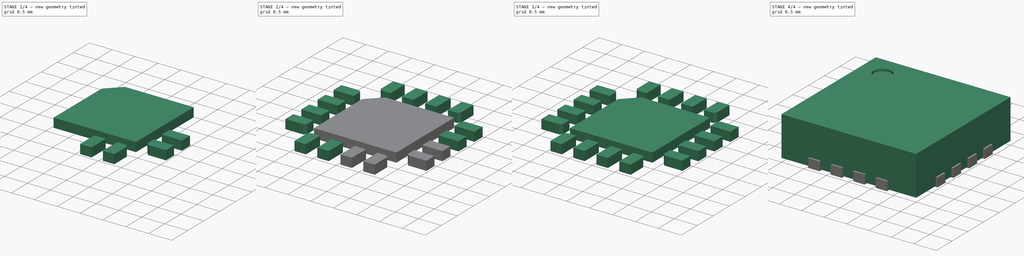
[diagram: build sequence overview — one tinted view per stage of 4, left to right]
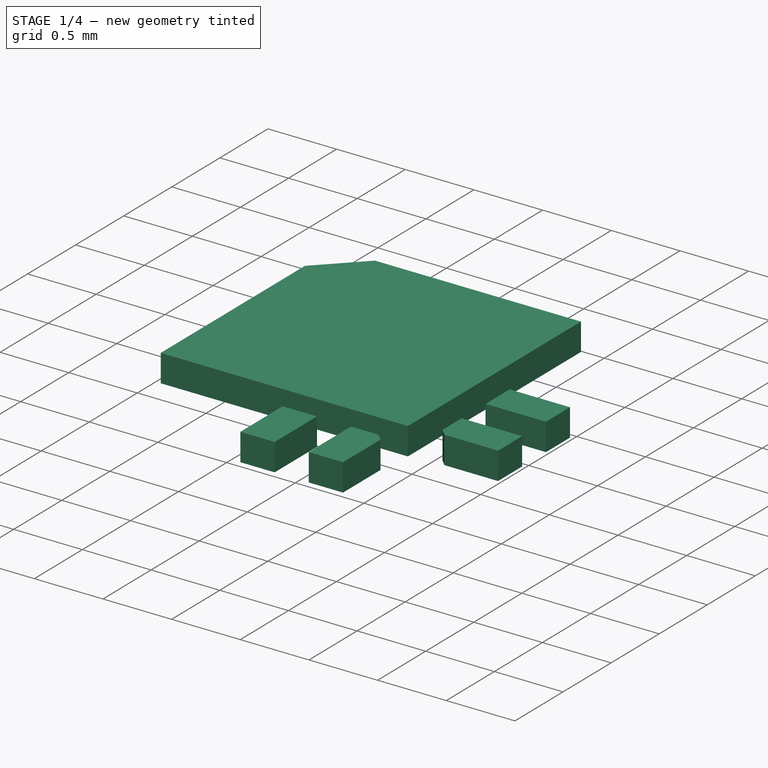
[diagram: stage 1 of 4 — iso view after this stage's code; geometry added in this stage tinted green]
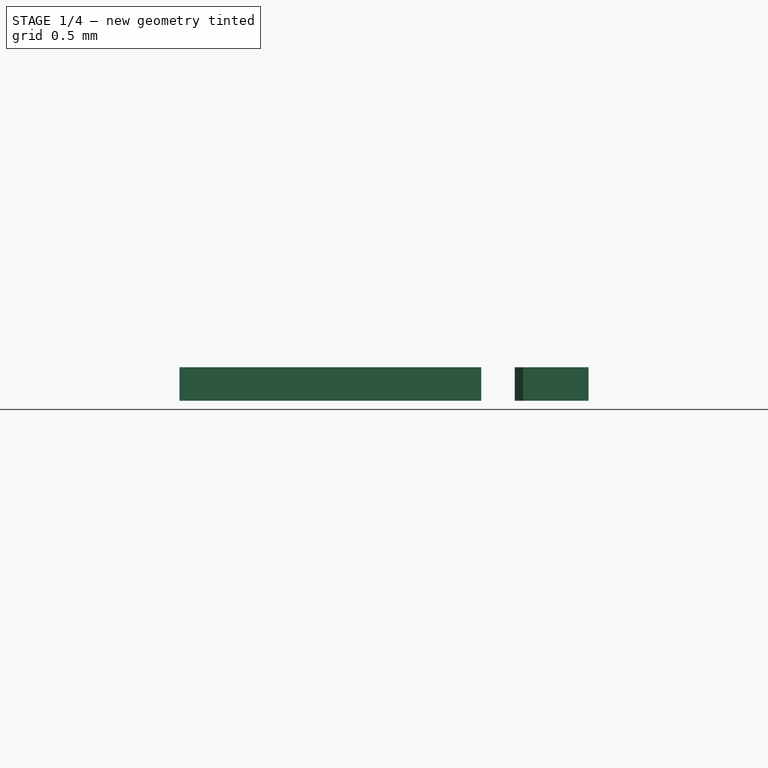
[diagram: stage 1 of 4 — front view after this stage's code; geometry added in this stage tinted green]
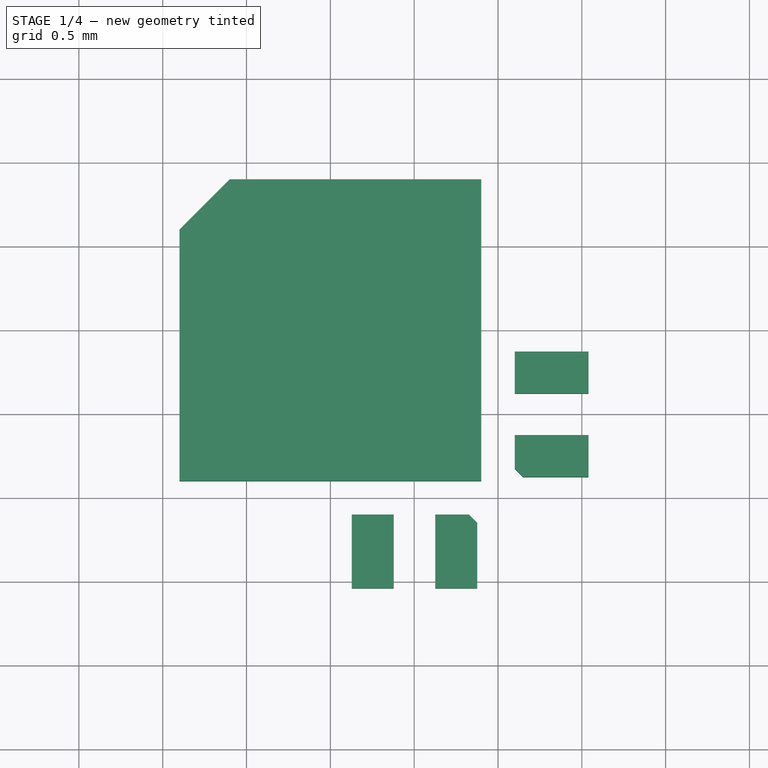
[diagram: stage 1 of 4 — top view after this stage's code; geometry added in this stage tinted green]
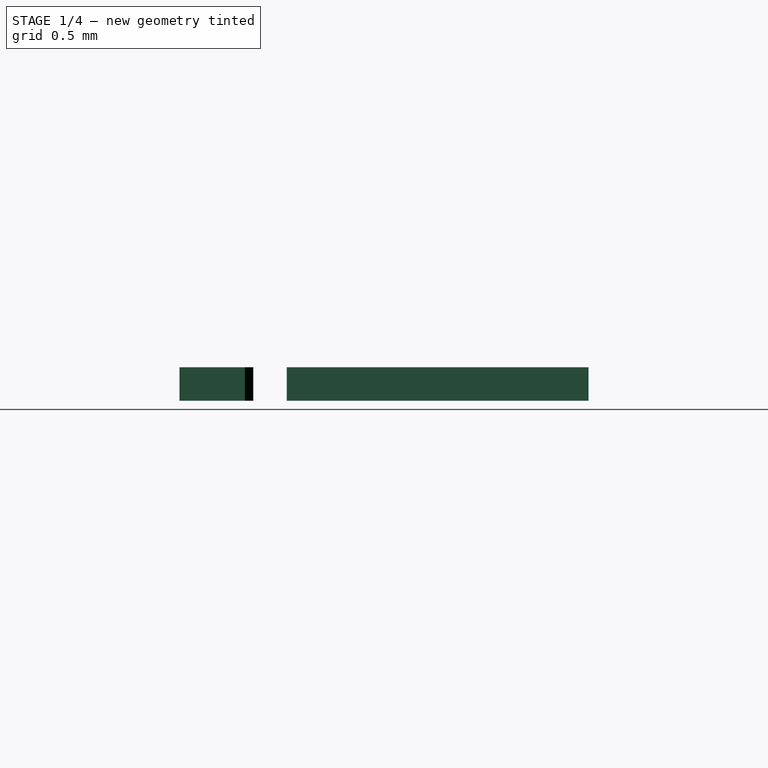
[diagram: stage 1 of 4 — right view after this stage's code; geometry added in this stage tinted green]
FCSTD DOCUMENT  (FreeCAD 0.16R6703 (Git))
Label: QFN16
License: All rights reserved
LicenseURL: http://en.wikipedia.org/wiki/All_rights_reserved
objects: Sketcher::SketchObject×4, PartDesign::Pad×3, Part::MultiFuse×3, Part::FeaturePython×2, Part::Mirroring×2, Part::Feature×1, PartDesign::Pocket×1, App::DocumentObjectGroup×1
note: 20 computed .brp shape members not serialized (recipe doc carries the construction recipe); baked Part::Feature solids carry a one-line shape summary decoded from their .brp

FEATURE [Sketcher::SketchObject] Sketch002
  sketch-geometry (19):
    g0: LineSegment StartX=-0.378 StartY=-1.1 StartZ=0 EndX=-0.128 EndY=-1.1 EndZ=0
    g1: LineSegment StartX=-0.128 StartY=-1.1 StartZ=0 EndX=-0.128 EndY=-1.54 EndZ=0
    g2: LineSegment StartX=-0.128 StartY=-1.54 StartZ=0 EndX=-0.378 EndY=-1.54 EndZ=0
    g3: LineSegment StartX=-0.378 StartY=-1.54 StartZ=0 EndX=-0.378 EndY=-1.1 EndZ=0
    g4: LineSegment StartX=-0.626 StartY=-1.1 StartZ=0 EndX=-0.626 EndY=-1.54 EndZ=0
    g5: LineSegment StartX=-0.626 StartY=-1.54 StartZ=0 EndX=-0.876 EndY=-1.54 EndZ=0
    g6: LineSegment StartX=-0.876 StartY=-1.54 StartZ=0 EndX=-0.876 EndY=-1.15 EndZ=0
    g7: LineSegment StartX=-0.876 StartY=-1.15 StartZ=0 EndX=-0.826 EndY=-1.1 EndZ=0
    g8: LineSegment StartX=-0.826 StartY=-1.1 StartZ=0 EndX=-0.626 EndY=-1.1 EndZ=0
    g9: LineSegment [constr] StartX=0 StartY=0 StartZ=0 EndX=-1.54 EndY=-1.54 EndZ=0
    g10: LineSegment StartX=-1.54 StartY=-0.128 StartZ=0 EndX=-1.1 EndY=-0.128 EndZ=0
    g11: LineSegment StartX=-1.1 StartY=-0.128 StartZ=0 EndX=-1.1 EndY=-0.378 EndZ=0
    g12: LineSegment StartX=-1.1 StartY=-0.378 StartZ=0 EndX=-1.54 EndY=-0.378 EndZ=0
    g13: LineSegment StartX=-1.54 StartY=-0.378 StartZ=0 EndX=-1.54 EndY=-0.128 EndZ=0
    g14: LineSegment StartX=-1.54 StartY=-0.626 StartZ=0 EndX=-1.1 EndY=-0.626 EndZ=0
    g15: LineSegment StartX=-1.15 StartY=-0.876 StartZ=0 EndX=-1.54 EndY=-0.876 EndZ=0
    g16: LineSegment StartX=-1.54 StartY=-0.876 StartZ=0 EndX=-1.54 EndY=-0.626 EndZ=0
    g17: LineSegment StartX=-1.15 StartY=-0.876 StartZ=0 EndX=-1.1 EndY=-0.826 EndZ=0
    g18: LineSegment StartX=-1.1 StartY=-0.826 StartZ=0 EndX=-1.1 EndY=-0.626 EndZ=0
  constraints (53):
    c: Coincident(g0,g1)
    c: Coincident(g1,g2)
    c: Coincident(g2,g3)
    c: Coincident(g3,g0)
    c: Horizontal(g0)
    c: Horizontal(g2)
    c: Vertical(g1)
    c: Vertical(g3)
    c: DistanceY(g1,g-1) = 1.54
    c: DistanceY(g1,g1) = 0.44
    c: DistanceX(g0,g0) = 0.25
    c: DistanceX(g0,g-1) = 0.128
    c: Coincident(g4,g5)
    c: Coincident(g5,g6)
    c: Horizontal(g5)
    c: Vertical(g4)
    c: Vertical(g6)
    c: PointOnObject(g4,g2)
    c: Equal(g4,g3)
    c: Equal(g5,g2)
    c: Coincident(g6,g7)
    c: Coincident(g7,g8)
    c: Coincident(g8,g4)
    c: Horizontal(g8)
    c: Angle(g7,g8) = 2.35619
    c: DistanceX(g8,g8) = 0.2
    c: DistanceX(g4,g2) = 0.248
    c: Coincident(g9,g-1)
    c: PointOnObject(g9,g5)
    c: Angle(g9,g-1) = 2.35619
    c: Coincident(g10,g11)
    c: Coincident(g11,g12)
    c: Coincident(g12,g13)
    c: Coincident(g13,g10)
    c: Horizontal(g10)
    c: Horizontal(g12)
    c: Vertical(g11)
    c: Vertical(g13)
    c: Coincident(g15,g16)
    c: Coincident(g16,g14)
    c: Horizontal(g14)
    c: Horizontal(g15)
    c: Vertical(g16)
    c: Coincident(g15,g17)
    c: Coincident(g17,g18)
    c: Coincident(g18,g14)
    c: Vertical(g18)
    c: Parallel(g17,g9)
    c: Symmetric(g15,g5,g9)
    c: Symmetric(g14,g4,g9)
    c: Symmetric(g10,g1,g9)
    c: Symmetric(g11,g0,g9)
    c: Equal(g17,g7)
FEATURE [PartDesign::Pad] Pad001  label="pads-src-1"
  Length = 0.2
  Length2 = 100
  Sketch = -> Sketch002
  Type = 0
FEATURE [Part::Mirroring] Part__Mirroring  label="pads-src-1 (Mirror #1)"
  Base = (0,0,0)
  Normal = (1,0,0)
  Source = -> Pad001
FEATURE [Sketcher::SketchObject] Sketch003
  sketch-geometry (6):
    g0: LineSegment StartX=-0.6 StartY=0.9 StartZ=0 EndX=0.9 EndY=0.9 EndZ=0
    g1: LineSegment StartX=0.9 StartY=0.9 StartZ=0 EndX=0.9 EndY=-0.9 EndZ=0
    g2: LineSegment StartX=0.9 StartY=-0.9 StartZ=0 EndX=-0.9 EndY=-0.9 EndZ=0
    g3: LineSegment StartX=-0.9 StartY=-0.9 StartZ=0 EndX=-0.9 EndY=0.6 EndZ=0
    g4: LineSegment StartX=-0.9 StartY=0.6 StartZ=0 EndX=-0.6 EndY=0.9 EndZ=0
    g5: LineSegment [constr] StartX=0.9 StartY=-0.9 StartZ=0 EndX=0 EndY=0 EndZ=0
  constraints (17):
    c: Horizontal(g0)
    c: Coincident(g0,g1)
    c: Vertical(g1)
    c: Coincident(g1,g2)
    c: Horizontal(g2)
    c: Coincident(g2,g3)
    c: Vertical(g3)
    c: Coincident(g3,g4)
    c: Coincident(g4,g0)
    c: Coincident(g5,g1)
    c: Coincident(g5,g-1)
    c: Angle(g5,g-1) = 0.785398
    c: Symmetric(g2,g0,g5)
    c: DistanceX(g2,g2) = 1.8
    c: Perpendicular(g5,g4)
    c: Symmetric(g0,g1,g-1)
    c: DistanceX(g0,g-1) = 0.6
FEATURE [PartDesign::Pad] Pad002  label="central-pad-src"
  Length = 0.2
  Length2 = 100
  Sketch = -> Sketch003
  Type = 0
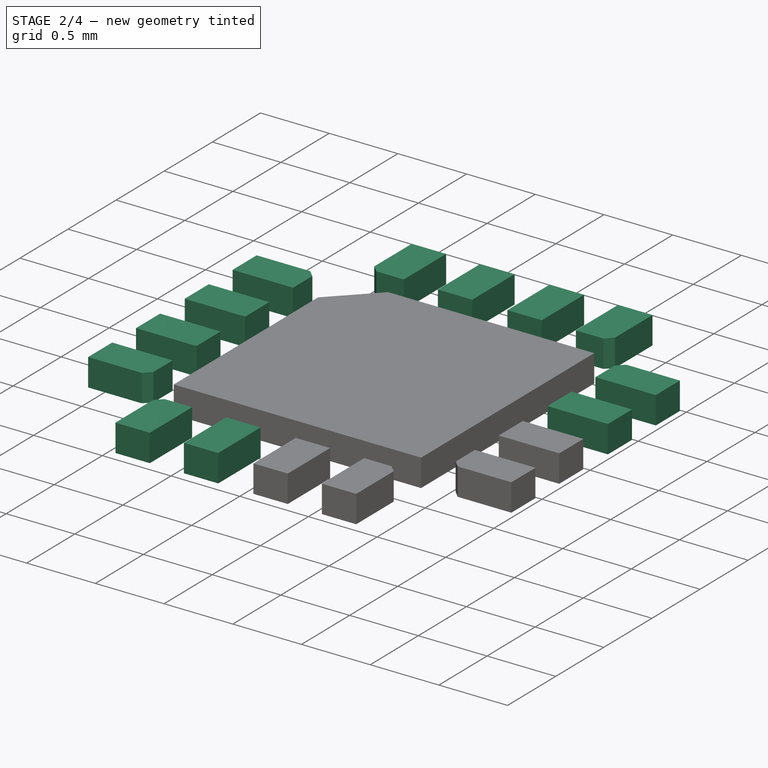
[diagram: stage 2 of 4 — iso view after this stage's code; geometry added in this stage tinted green]
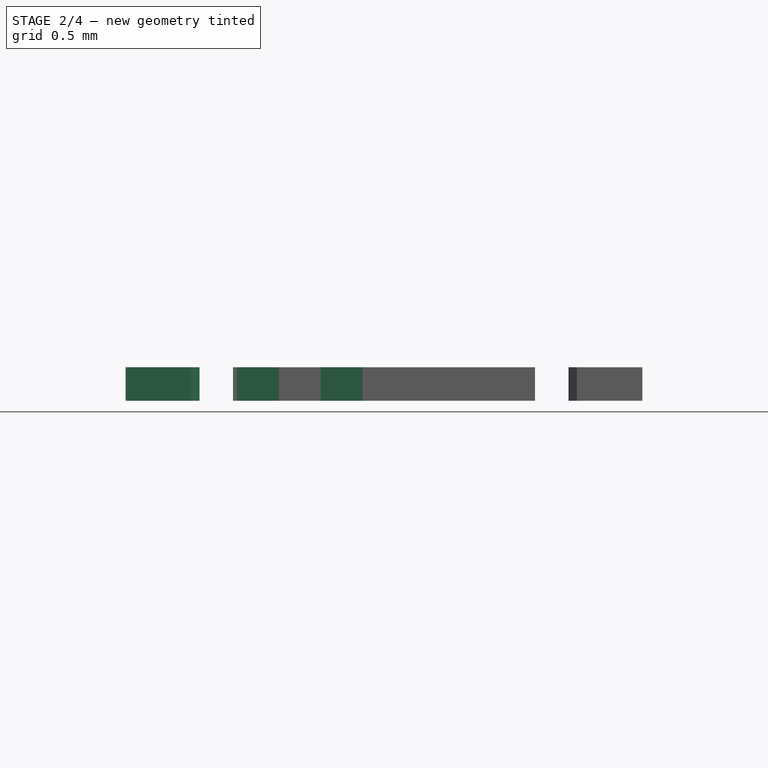
[diagram: stage 2 of 4 — front view after this stage's code; geometry added in this stage tinted green]
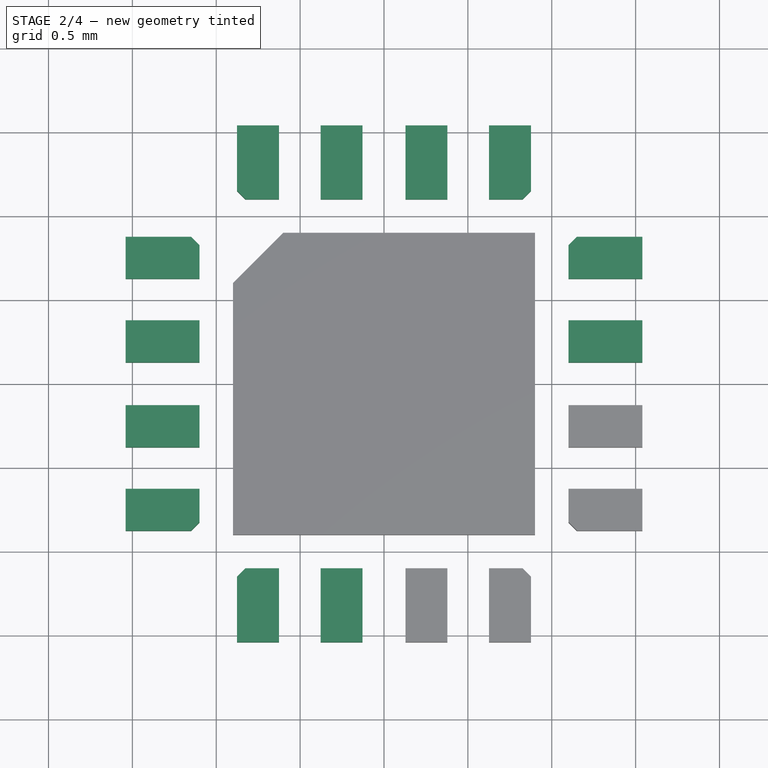
[diagram: stage 2 of 4 — top view after this stage's code; geometry added in this stage tinted green]
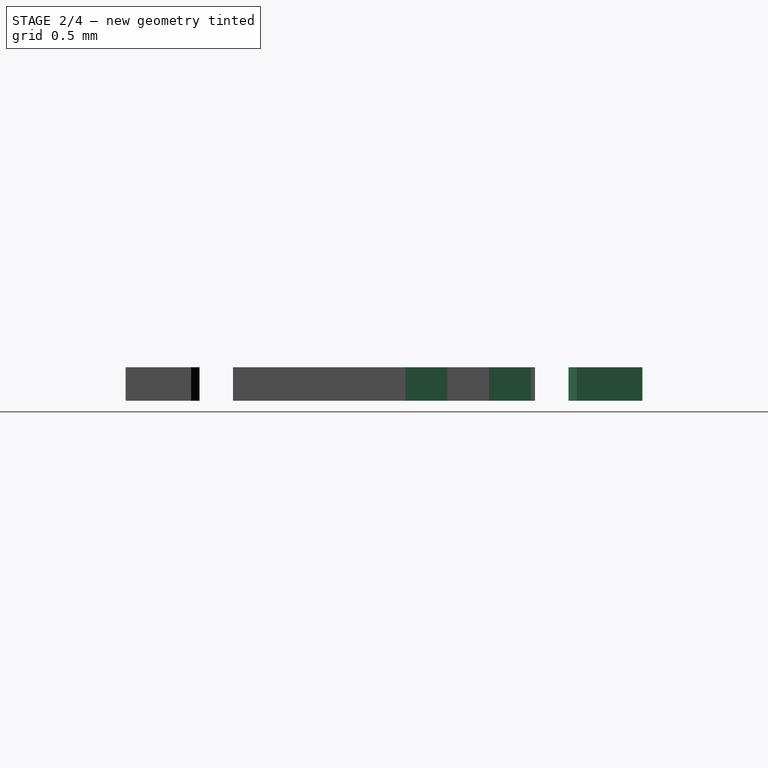
[diagram: stage 2 of 4 — right view after this stage's code; geometry added in this stage tinted green]
FEATURE [Part::MultiFuse] Fusion
  Shapes = -> [Part__Mirroring,Pad001]
FEATURE [Part::Mirroring] Part__Mirroring001  label="Fusion (Mirror #2)"
  Base = (0,0,0)
  Normal = (0,1,0)
  Source = -> Fusion
FEATURE [Part::MultiFuse] Fusion001  label="side-pads"
  Shapes = -> [Part__Mirroring001,Fusion]
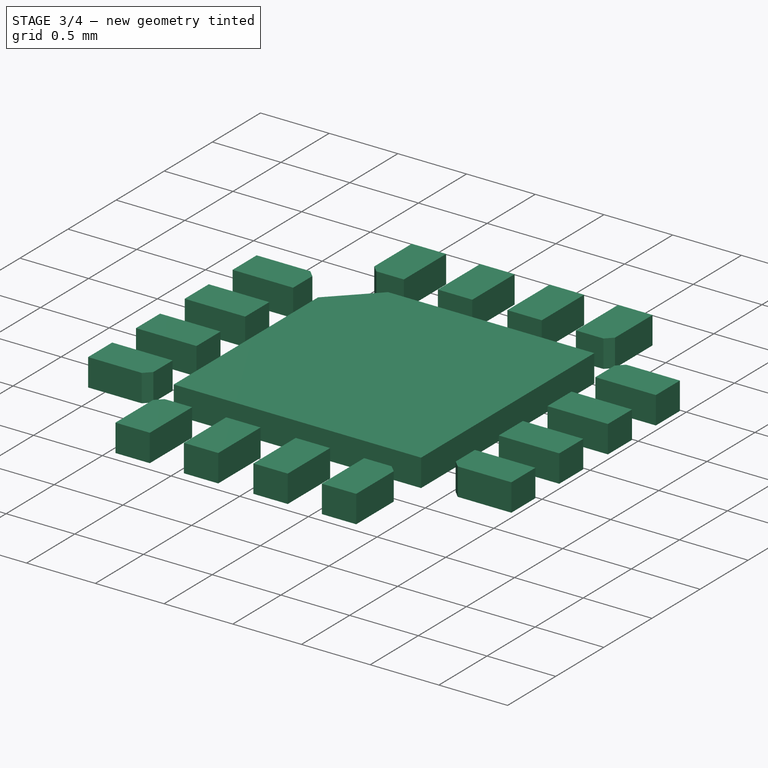
[diagram: stage 3 of 4 — iso view after this stage's code; geometry added in this stage tinted green]
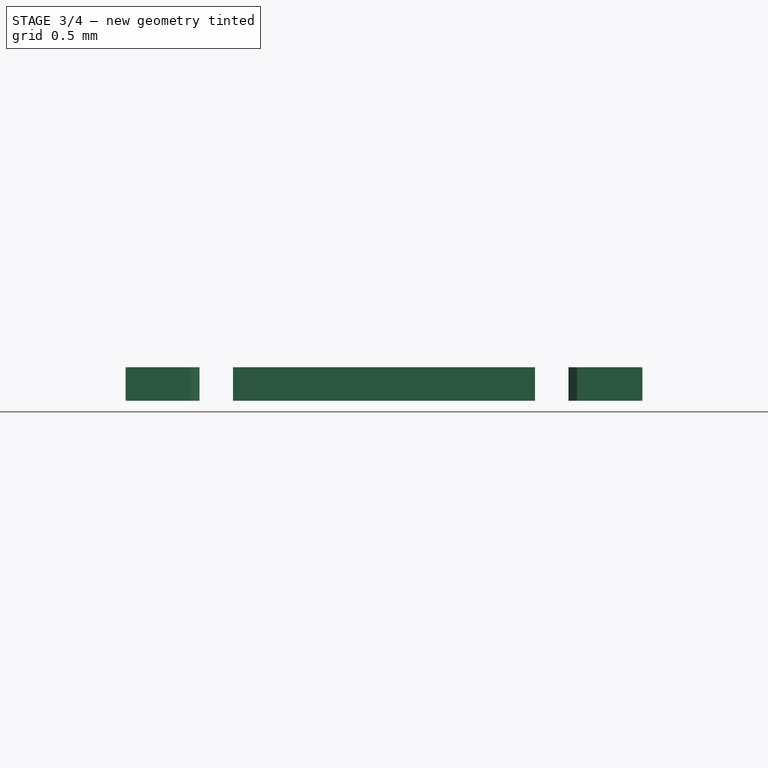
[diagram: stage 3 of 4 — front view after this stage's code; geometry added in this stage tinted green]
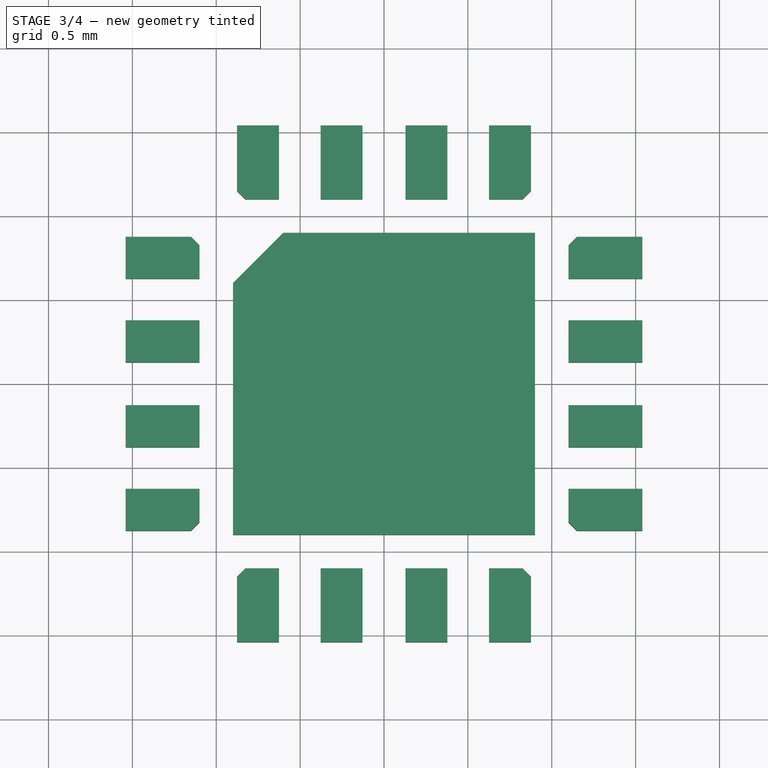
[diagram: stage 3 of 4 — top view after this stage's code; geometry added in this stage tinted green]
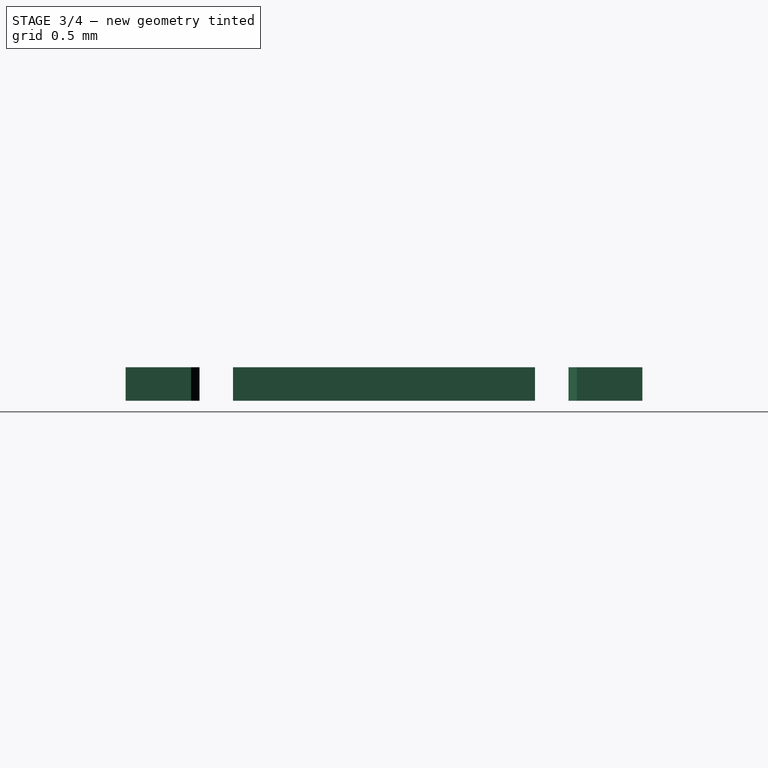
[diagram: stage 3 of 4 — right view after this stage's code; geometry added in this stage tinted green]
FEATURE [Part::MultiFuse] Fusion002  label="pad-src"
  Shapes = -> [Fusion001,Pad002]
FEATURE [App::DocumentObjectGroup] Group  label="src"
  Group = -> [Pad,Pocket,Fusion002]
FEATURE [Part::FeaturePython] Clone001  label="pads"  # Draft clone (typed FeaturePython)
  Objects = -> [Fusion002]
  Scale = (1,1,1)
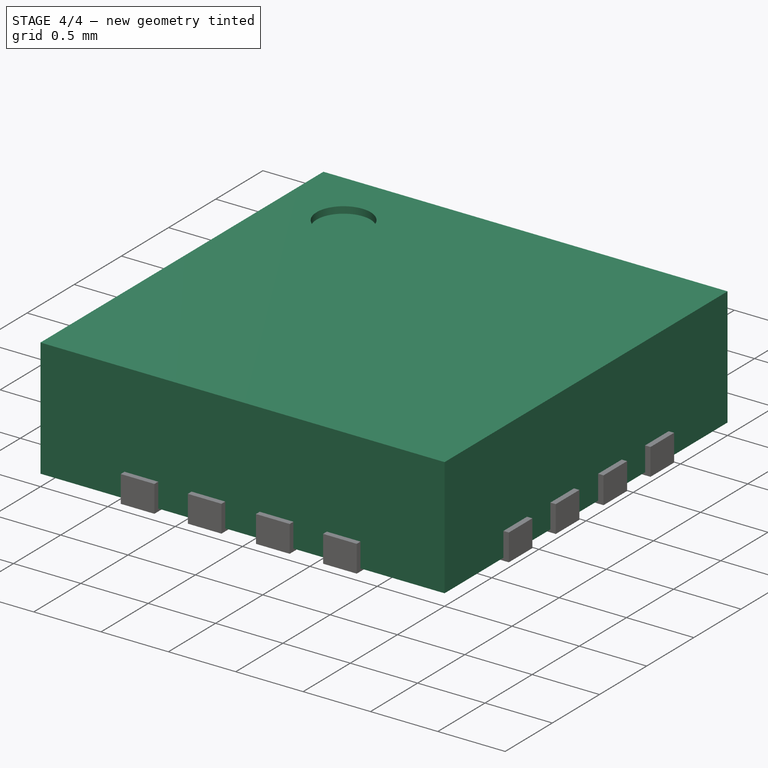
[diagram: stage 4 of 4 — iso view after this stage's code; geometry added in this stage tinted green]
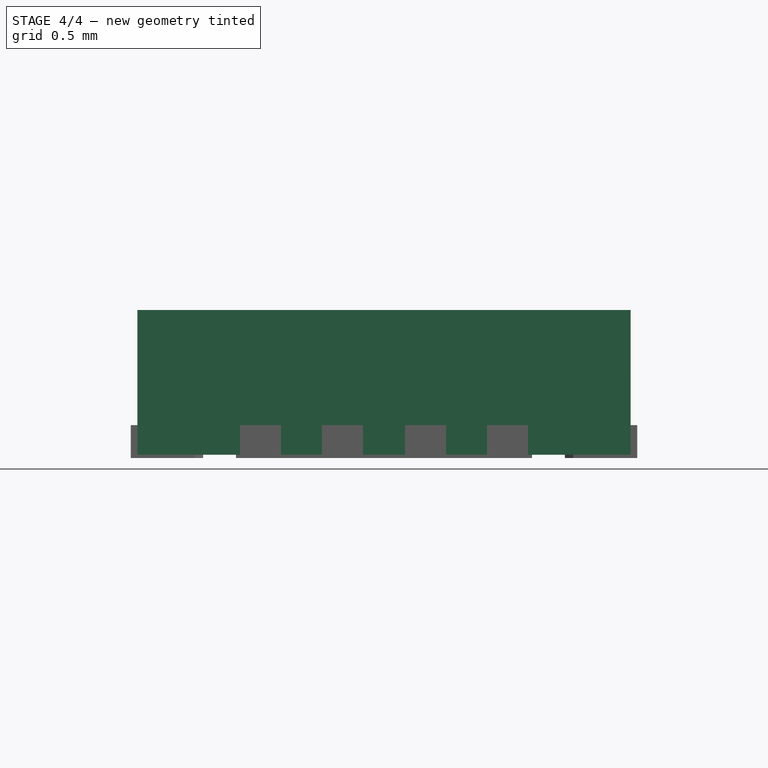
[diagram: stage 4 of 4 — front view after this stage's code; geometry added in this stage tinted green]
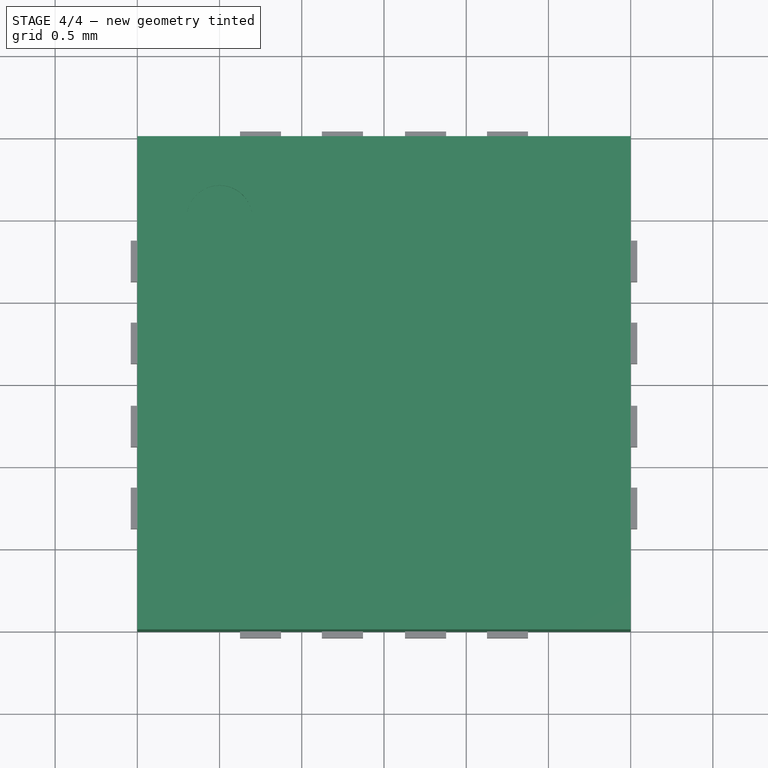
[diagram: stage 4 of 4 — top view after this stage's code; geometry added in this stage tinted green]
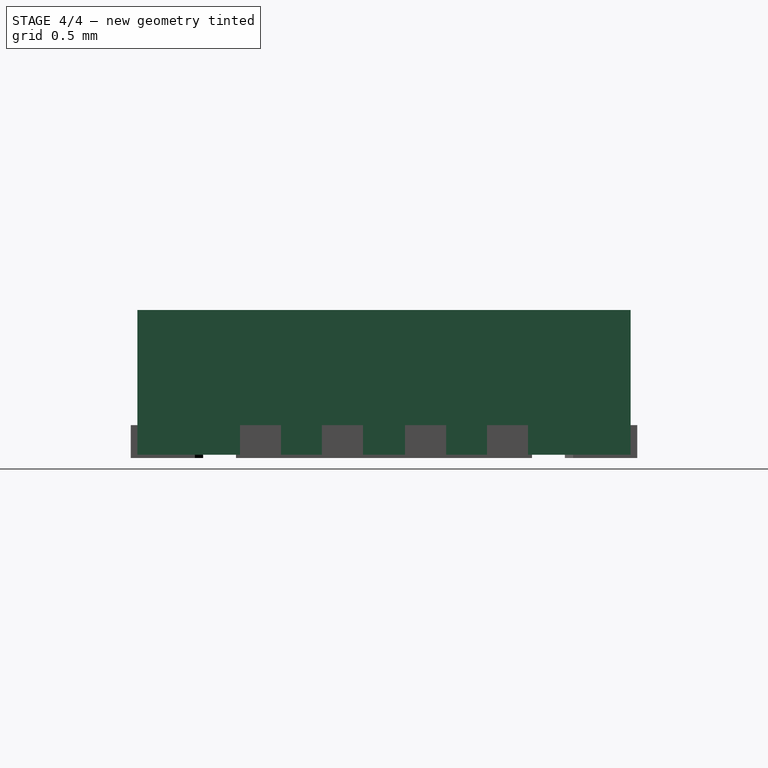
[diagram: stage 4 of 4 — right view after this stage's code; geometry added in this stage tinted green]
FEATURE [Part::Feature] Part__Feature356  label="User_Library-QFN-16"
  Placement = pos=(3e-12,-4e-12,0) rot=(0,0,1;1.5708rad)
  shape: bbox 3.002 x 3.002 x 0.9 mm, 119 faces (baked)
FEATURE [Sketcher::SketchObject] Sketch  label="body-sketch"
  Placement = pos=(1.7892e-08,-1.7893e-08,0.02) rot=(0,0,1;0rad)
  sketch-geometry (4):
    g0: LineSegment StartX=-1.5 StartY=1.5 StartZ=0 EndX=1.5 EndY=1.5 EndZ=0
    g1: LineSegment StartX=1.5 StartY=1.5 StartZ=0 EndX=1.5 EndY=-1.5 EndZ=0
    g2: LineSegment StartX=1.5 StartY=-1.5 StartZ=0 EndX=-1.5 EndY=-1.5 EndZ=0
    g3: LineSegment StartX=-1.5 StartY=-1.5 StartZ=0 EndX=-1.5 EndY=1.5 EndZ=0
  constraints (11):
    c: Coincident(g0,g1)
    c: Coincident(g1,g2)
    c: Coincident(g2,g3)
    c: Coincident(g3,g0)
    c: Horizontal(g0)
    c: Horizontal(g2)
    c: Vertical(g1)
    c: Vertical(g3)
    c: Symmetric(g0,g1,g-1)
    c: Equal(g3,g2)
    c: DistanceY(g3,g3) = 3
FEATURE [PartDesign::Pad] Pad  label="body-src-1"
  Length = 0.88
  Length2 = 100
  Placement = pos=(1.7892e-08,-1.7893e-08,0.02) rot=(0,0,1;0rad)
  Sketch = -> Sketch
  Type = 0
FEATURE [Sketcher::SketchObject] Sketch001
  Placement = pos=(1.7892e-08,-1.7893e-08,0.9) rot=(0,0,1;0rad)
  Support = -> Pad [Face6]
  sketch-geometry (1):
    g0: Circle CenterX=-1 CenterY=1 CenterZ=0 NormalX=0 NormalY=0 NormalZ=1 Radius=0.2
  constraints (3):
    c: Radius(g0) = 0.2
    c: DistanceX(g0,g-1) = 1
    c: DistanceY(g-1,g0) = 1
FEATURE [PartDesign::Pocket] Pocket  label="body-mark"
  Length = 0.05
  Placement = pos=(1.7892e-08,-1.7893e-08,0.02) rot=(0,0,1;0rad)
  Sketch = -> Sketch001
  Type = 0
FEATURE [Part::FeaturePython] Clone  label="body"  # Draft clone (typed FeaturePython)
  Objects = -> [Pocket]
  Placement = pos=(1.7892e-08,-1.7893e-08,0.02) rot=(0,0,1;0rad)
  Scale = (1,1,1)
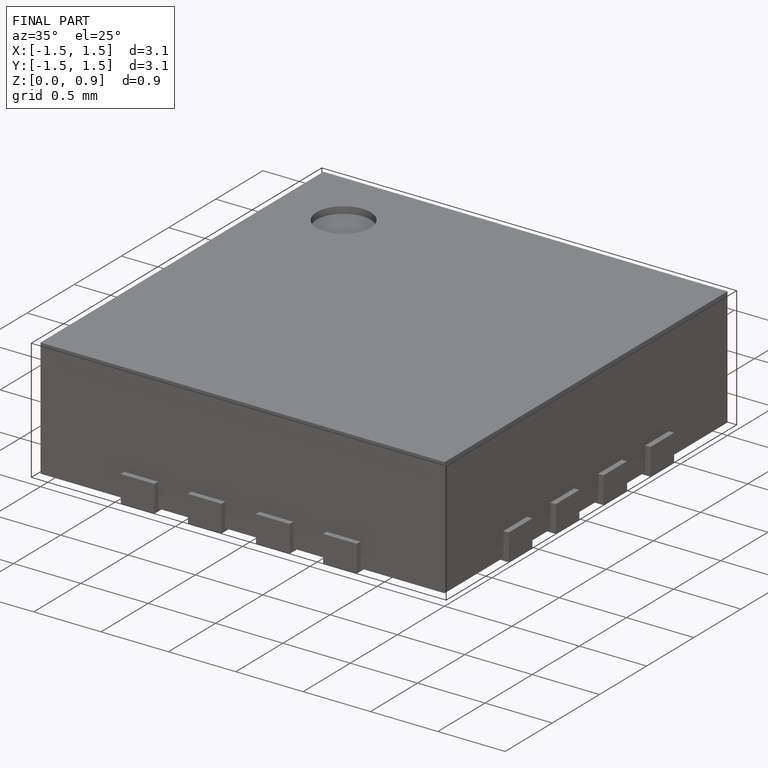
[diagram: finished part — iso view with bounding-box wireframe]
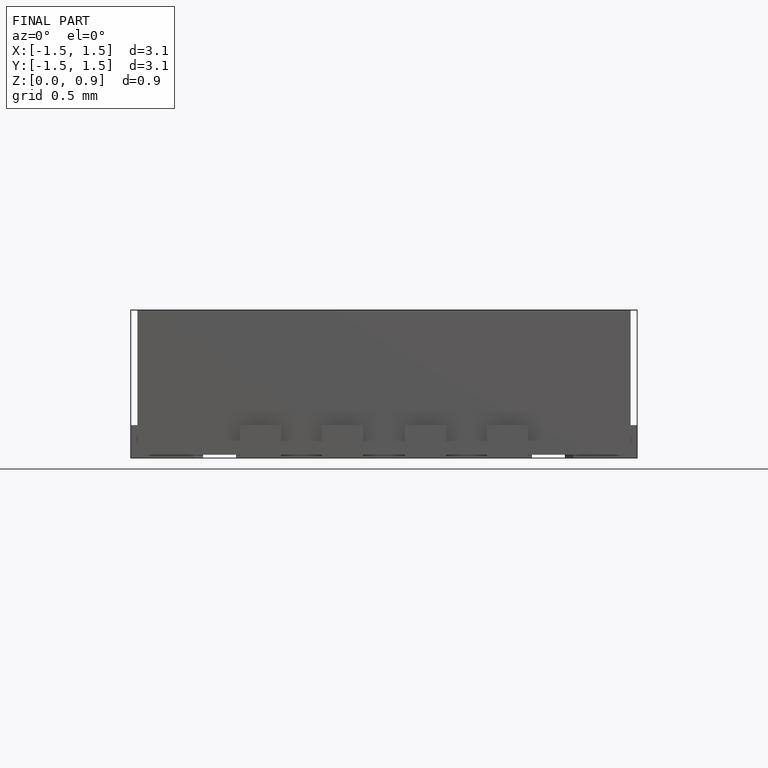
[diagram: finished part — front view with bounding-box wireframe]
